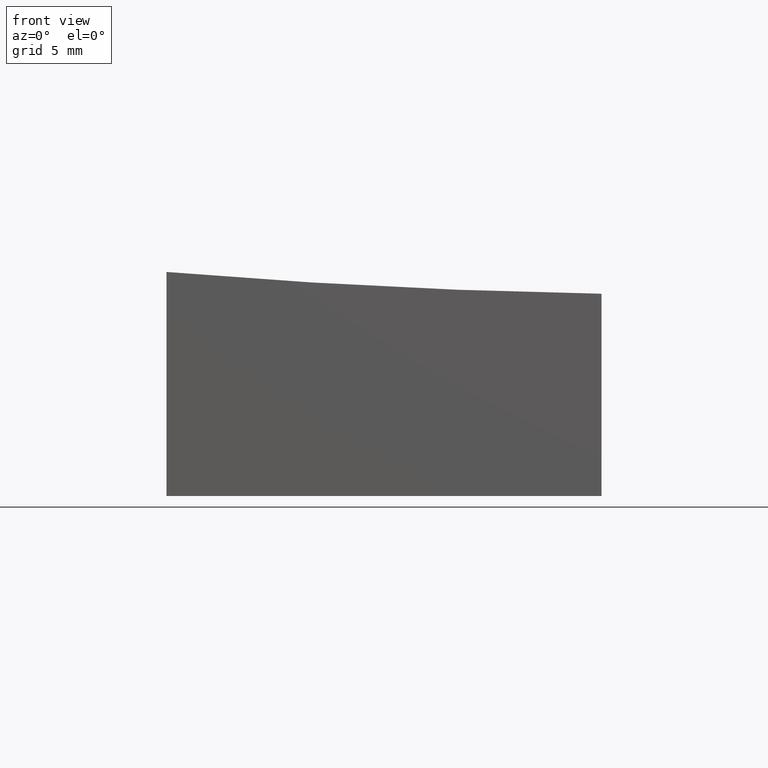
[diagram: clean part render]
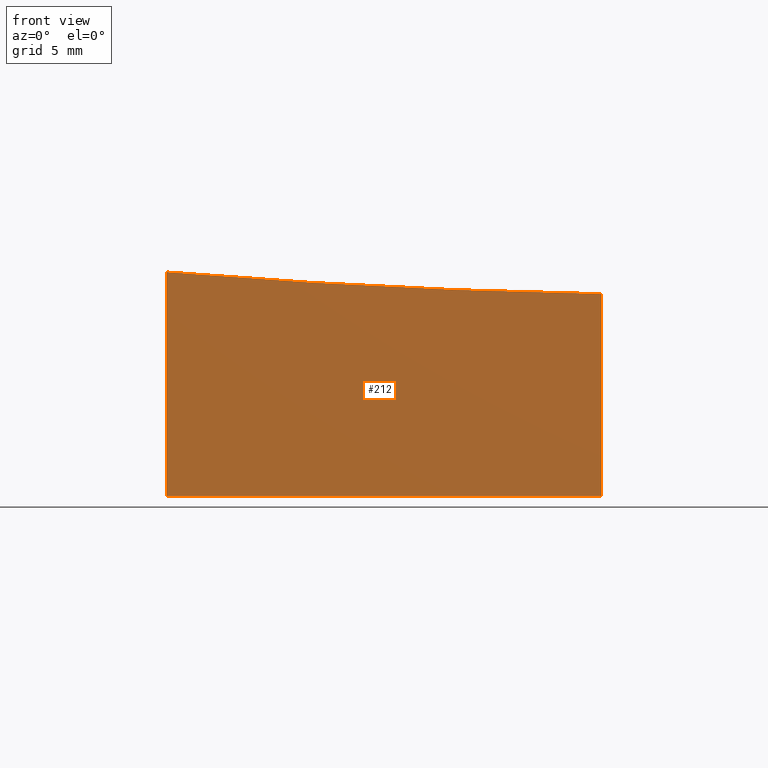
[diagram: same view with one face highlighted and labeled with its STEP entity id]
A machine part, front view. The second image highlights one B-rep face of the part: STEP entity #212.
In plain terms, the highlighted planar face has unit normal (-0, 1, 0).
Its self-contained STEP definition (entity closure, byte-faithful):
#12 = CARTESIAN_POINT ( 'NONE',  ( 10.00000000000000178, -12.50000000000000000, -10.00000000000000000 ) ) ;
#26 = VERTEX_POINT ( 'NONE', #79 ) ;
#27 = LINE ( 'NONE', #246, #130 ) ;
#28 = EDGE_CURVE ( 'NONE', #195, #118, #260, .T. ) ;
#30 = CARTESIAN_POINT ( 'NONE',  ( -9.999999999999998224, -12.50000000000000355, -10.00000000000000000 ) ) ;
#34 = DIRECTION ( 'NONE',  ( -1.000000000000000000, -1.734723475976807094E-16, 0.000000000000000000 ) ) ;
#35 = CARTESIAN_POINT ( 'NONE',  ( -9.999999999999998224, -12.50000000000000355, 10.00000000000000000 ) ) ;
#36 = VECTOR ( 'NONE', #134, 1000.000000000000000 ) ;
#53 = CIRCLE ( 'NONE', #210, 299.7394702070449171 ) ;
#54 = CARTESIAN_POINT ( 'NONE',  ( 10.00000000000000178, -12.50000000000000000, -10.00000000000000000 ) ) ;
#79 = CARTESIAN_POINT ( 'NONE',  ( -9.999999999999998224, -12.50000000000000355, 0.3049213662870142727 ) ) ;
#85 = EDGE_CURVE ( 'NONE', #133, #118, #27, .T. ) ;
#91 = EDGE_LOOP ( 'NONE', ( #117, #277, #176, #93 ) ) ;
#93 = ORIENTED_EDGE ( 'NONE', *, *, #28, .T. ) ;
#101 = DIRECTION ( 'NONE',  ( -0.000000000000000000, -0.000000000000000000, -1.000000000000000000 ) ) ;
#116 = EDGE_CURVE ( 'NONE', #133, #26, #53, .T. ) ;
#117 = ORIENTED_EDGE ( 'NONE', *, *, #85, .F. ) ;
#118 = VERTEX_POINT ( 'NONE', #54 ) ;
#121 = PLANE ( 'NONE',  #209 ) ;
#123 = LINE ( 'NONE', #35, #161 ) ;
#130 = VECTOR ( 'NONE', #101, 1000.000000000000000 ) ;
#133 = VERTEX_POINT ( 'NONE', #159 ) ;
#134 = DIRECTION ( 'NONE',  ( 1.000000000000000000, 1.734723475976807094E-16, -0.000000000000000000 ) ) ;
#143 = FACE_OUTER_BOUND ( 'NONE', #91, .T. ) ;
#158 = CARTESIAN_POINT ( 'NONE',  ( 10.00000000000000178, -12.50000000000000000, 10.00000000000000000 ) ) ;
#159 = CARTESIAN_POINT ( 'NONE',  ( 10.00000000000000178, -12.50000000000000000, -0.6977644227598167603 ) ) ;
#161 = VECTOR ( 'NONE', #182, 1000.000000000000000 ) ;
#176 = ORIENTED_EDGE ( 'NONE', *, *, #213, .T. ) ;
#182 = DIRECTION ( 'NONE',  ( -0.000000000000000000, -0.000000000000000000, -1.000000000000000000 ) ) ;
#195 = VERTEX_POINT ( 'NONE', #30 ) ;
#198 = DIRECTION ( 'NONE',  ( -1.000000000000000000, -1.736231275892908730E-16, 0.000000000000000000 ) ) ;
#209 = AXIS2_PLACEMENT_3D ( 'NONE', #158, #225, #34 ) ;
#210 = AXIS2_PLACEMENT_3D ( 'NONE', #263, #265, #198 ) ;
#212 = ADVANCED_FACE ( 'NONE', ( #143 ), #121, .F. ) ;
#213 = EDGE_CURVE ( 'NONE', #26, #195, #123, .T. ) ;
#225 = DIRECTION ( 'NONE',  ( -1.734723475976807094E-16, 1.000000000000000000, 0.000000000000000000 ) ) ;
#246 = CARTESIAN_POINT ( 'NONE',  ( 10.00000000000000178, -12.50000000000000000, 10.00000000000000000 ) ) ;
#260 = LINE ( 'NONE', #12, #36 ) ;
#263 = CARTESIAN_POINT ( 'NONE',  ( 15.00000000000004086, -12.49999999999999822, 299.0000000000000000 ) ) ;
#265 = DIRECTION ( 'NONE',  ( -1.734723475976807094E-16, 1.000000000000000000, 0.000000000000000000 ) ) ;
#277 = ORIENTED_EDGE ( 'NONE', *, *, #116, .T. ) ;